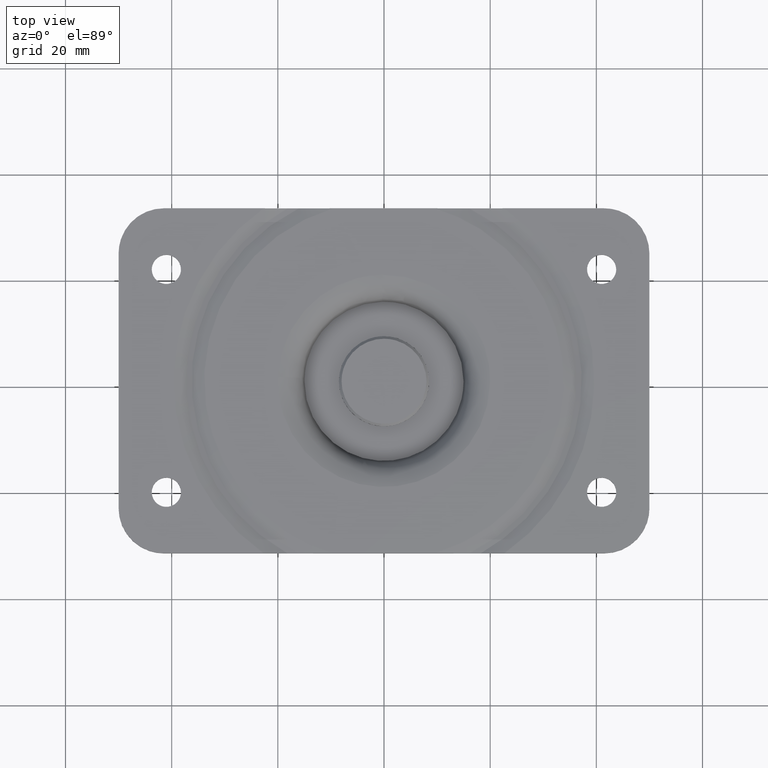
[diagram: clean part render]
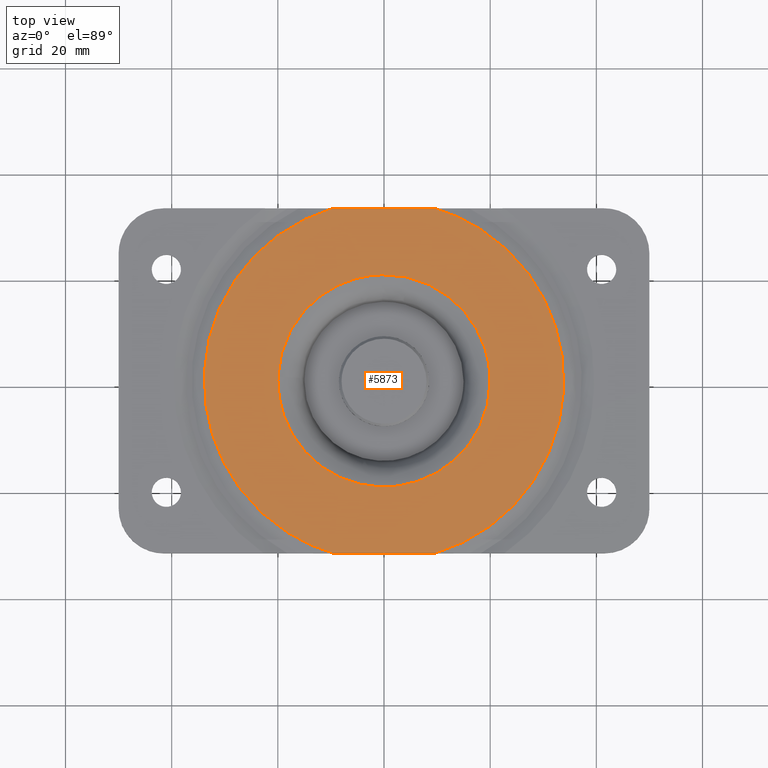
[diagram: same view with one face highlighted and labeled with its STEP entity id]
A machine part, top view. The second image highlights one B-rep face of the part: STEP entity #5873.
In plain terms, the highlighted face is a freeform B-spline surface patch.
Its self-contained STEP definition (entity closure, byte-faithful):
#4217=CARTESIAN_POINT('',(-19.981420451060899,0.753626610181088,-4.902490E-013));
#4218=VERTEX_POINT('',#4217);
#4232=CARTESIAN_POINT('',(-19.995628993949001,0.0,0.0));
#4233=VERTEX_POINT('',#4232);
#4234=CARTESIAN_POINT('',(-19.995628993949001,0.0,0.0));
#4235=CARTESIAN_POINT('',(-19.995628212408644,0.376947216404669,-2.451245E-013));
#4236=CARTESIAN_POINT('',(-19.981420451060895,0.753626610181088,-4.902490E-013));
#4244=(BOUNDED_CURVE()B_SPLINE_CURVE(2,(#4234,#4235,#4236),.UNSPECIFIED.,.F.,.U.)B_SPLINE_CURVE_WITH_KNOTS((3,3),(0.0,0.006613364760913),.UNSPECIFIED.)CURVE()GEOMETRIC_REPRESENTATION_ITEM()RATIONAL_B_SPLINE_CURVE((1.0,0.992251961231955,0.984913847316348))REPRESENTATION_ITEM(''));
#4245=EDGE_CURVE('',#4233,#4218,#4244,.T.);
#4247=CARTESIAN_POINT('',(19.995628993949001,0.0,0.0));
#4248=VERTEX_POINT('',#4247);
#4249=CARTESIAN_POINT('',(19.995628993949001,0.0,0.0));
#4250=CARTESIAN_POINT('',(19.995628993949001,-19.995628993949001,0.0));
#4251=CARTESIAN_POINT('',(0.0,-19.995628993949001,0.0));
#4252=CARTESIAN_POINT('',(-19.995628993949001,-19.995628993949001,0.0));
#4253=CARTESIAN_POINT('',(-19.995628993949001,0.0,0.0));
#4261=(BOUNDED_CURVE()B_SPLINE_CURVE(2,(#4249,#4250,#4251,#4252,#4253),.UNSPECIFIED.,.F.,.U.)B_SPLINE_CURVE_WITH_KNOTS((3,2,3),(0.500000000000000,0.750000000000000,1.0),.UNSPECIFIED.)CURVE()GEOMETRIC_REPRESENTATION_ITEM()RATIONAL_B_SPLINE_CURVE((1.0,0.707106781186547,1.0,0.707106781186547,1.0))REPRESENTATION_ITEM(''));
#4262=EDGE_CURVE('',#4248,#4233,#4261,.T.);
#4264=CARTESIAN_POINT('',(-0.390378030916927,19.991817922299500,-8.977657E-016));
#4265=VERTEX_POINT('',#4264);
#4266=CARTESIAN_POINT('',(-0.390378030916927,19.991817922299493,-8.977657E-016));
#4267=CARTESIAN_POINT('',(-0.195207618377804,19.995628993949001,0.0));
#4268=CARTESIAN_POINT('',(0.0,19.995628993949001,0.0));
#4269=CARTESIAN_POINT('',(19.995628993949001,19.995628993949001,0.0));
#4270=CARTESIAN_POINT('',(19.995628993949001,0.0,0.0));
#4278=(BOUNDED_CURVE()B_SPLINE_CURVE(2,(#4266,#4267,#4268,#4269,#4270),.UNSPECIFIED.,.F.,.U.)B_SPLINE_CURVE_WITH_KNOTS((3,2,3),(0.246562331019609,0.250000000000000,0.500000000000000),.UNSPECIFIED.)CURVE()GEOMETRIC_REPRESENTATION_ITEM()RATIONAL_B_SPLINE_CURVE((0.992055801674083,0.995972520268472,1.0,0.707106781186547,1.0))REPRESENTATION_ITEM(''));
#4279=EDGE_CURVE('',#4265,#4248,#4278,.T.);
#4328=CARTESIAN_POINT('',(-19.981420451060895,0.753626610181088,-4.902490E-013));
#4329=CARTESIAN_POINT('',(-19.269730858433196,19.623162830306946,-2.455734E-013));
#4330=CARTESIAN_POINT('',(-0.390378030916927,19.991817922299493,-8.977657E-016));
#4338=(BOUNDED_CURVE()B_SPLINE_CURVE(2,(#4328,#4329,#4330),.UNSPECIFIED.,.F.,.U.)B_SPLINE_CURVE_WITH_KNOTS((3,3),(0.006613364760913,0.246562331019609),.UNSPECIFIED.)CURVE()GEOMETRIC_REPRESENTATION_ITEM()RATIONAL_B_SPLINE_CURVE((0.984913847316348,0.718669218145866,0.992055801674083))REPRESENTATION_ITEM(''));
#4339=EDGE_CURVE('',#4218,#4265,#4338,.T.);
#5333=CARTESIAN_POINT('',(9.553781606711661,-32.500000000000000,0.0));
#5334=VERTEX_POINT('',#5333);
#5365=CARTESIAN_POINT('',(9.553781606711651,32.500000000000000,0.0));
#5366=VERTEX_POINT('',#5365);
#5380=CARTESIAN_POINT('',(9.553781606711672,-32.499999999999979,0.0));
#5381=CARTESIAN_POINT('',(33.875134582592302,-25.350434008882736,0.0));
#5382=CARTESIAN_POINT('',(33.875134582592302,0.0,0.0));
#5383=CARTESIAN_POINT('',(33.875134582592302,25.350434008882750,0.0));
#5384=CARTESIAN_POINT('',(9.553781606711651,32.499999999999993,0.0));
#5392=(BOUNDED_CURVE()B_SPLINE_CURVE(2,(#5380,#5381,#5382,#5383,#5384),.UNSPECIFIED.,.F.,.U.)B_SPLINE_CURVE_WITH_KNOTS((3,2,3),(0.0,0.500000000000000,1.0),.UNSPECIFIED.)CURVE()GEOMETRIC_REPRESENTATION_ITEM()RATIONAL_B_SPLINE_CURVE((1.0,0.800633915361849,1.0,0.800633915361849,1.0))REPRESENTATION_ITEM(''));
#5393=EDGE_CURVE('',#5334,#5366,#5392,.T.);
#5423=CARTESIAN_POINT('',(-9.553781606711651,32.500000000000000,0.0));
#5424=VERTEX_POINT('',#5423);
#5455=CARTESIAN_POINT('',(-9.553781606711651,-32.500000000000000,0.0));
#5456=VERTEX_POINT('',#5455);
#5470=CARTESIAN_POINT('',(-9.553781606711638,32.499999999999993,0.0));
#5471=CARTESIAN_POINT('',(-33.875134582592302,25.350434008882750,0.0));
#5472=CARTESIAN_POINT('',(-33.875134582592302,0.0,0.0));
#5473=CARTESIAN_POINT('',(-33.875134582592302,-25.350434008882750,0.0));
#5474=CARTESIAN_POINT('',(-9.553781606711654,-32.499999999999993,0.0));
#5482=(BOUNDED_CURVE()B_SPLINE_CURVE(2,(#5470,#5471,#5472,#5473,#5474),.UNSPECIFIED.,.F.,.U.)B_SPLINE_CURVE_WITH_KNOTS((3,2,3),(0.0,0.500000000000000,1.0),.UNSPECIFIED.)CURVE()GEOMETRIC_REPRESENTATION_ITEM()RATIONAL_B_SPLINE_CURVE((1.0,0.800633915361849,1.0,0.800633915361849,1.0))REPRESENTATION_ITEM(''));
#5483=EDGE_CURVE('',#5424,#5456,#5482,.T.);
#5848=CARTESIAN_POINT('',(-37.259259518037481,35.746749874017382,0.0));
#5849=CARTESIAN_POINT('',(37.259257095099052,35.746749874017382,0.0));
#5850=CARTESIAN_POINT('',(-37.259259518037481,-35.746751617453242,0.0));
#5851=CARTESIAN_POINT('',(37.259257095099052,-35.746751617453242,0.0));
#5852=B_SPLINE_SURFACE_WITH_KNOTS('',1,1,((#5848,#5850),(#5849,#5851)),.UNSPECIFIED.,.F.,.F.,.U.,(2,2),(2,2),(0.0,74.518516613136526),(0.0,71.493501491470610),.UNSPECIFIED.);
#5853=CARTESIAN_POINT('',(9.553781606711651,32.500000000000000,0.0));
#5854=CARTESIAN_POINT('',(-9.553781606711651,32.500000000000000,0.0));
#5855=QUASI_UNIFORM_CURVE('',1,(#5853,#5854),.UNSPECIFIED.,.F.,.U.);
#5856=EDGE_CURVE('',#5366,#5424,#5855,.T.);
#5857=ORIENTED_EDGE('',*,*,#5856,.T.);
#5858=ORIENTED_EDGE('',*,*,#5483,.T.);
#5859=CARTESIAN_POINT('',(-9.553781606711651,-32.500000000000000,0.0));
#5860=CARTESIAN_POINT('',(9.553781606711661,-32.500000000000000,0.0));
#5861=QUASI_UNIFORM_CURVE('',1,(#5859,#5860),.UNSPECIFIED.,.F.,.U.);
#5862=EDGE_CURVE('',#5456,#5334,#5861,.T.);
#5863=ORIENTED_EDGE('',*,*,#5862,.T.);
#5864=ORIENTED_EDGE('',*,*,#5393,.T.);
#5865=EDGE_LOOP('',(#5857,#5858,#5863,#5864));
#5866=FACE_OUTER_BOUND('',#5865,.T.);
#5867=ORIENTED_EDGE('',*,*,#4262,.T.);
#5868=ORIENTED_EDGE('',*,*,#4245,.T.);
#5869=ORIENTED_EDGE('',*,*,#4339,.T.);
#5870=ORIENTED_EDGE('',*,*,#4279,.T.);
#5871=EDGE_LOOP('',(#5867,#5868,#5869,#5870));
#5872=FACE_BOUND('',#5871,.T.);
#5873=ADVANCED_FACE('',(#5866,#5872),#5852,.F.);